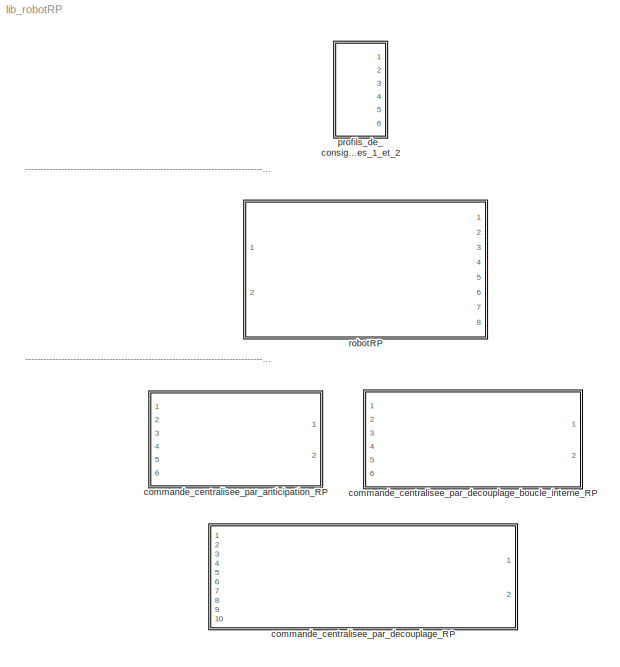
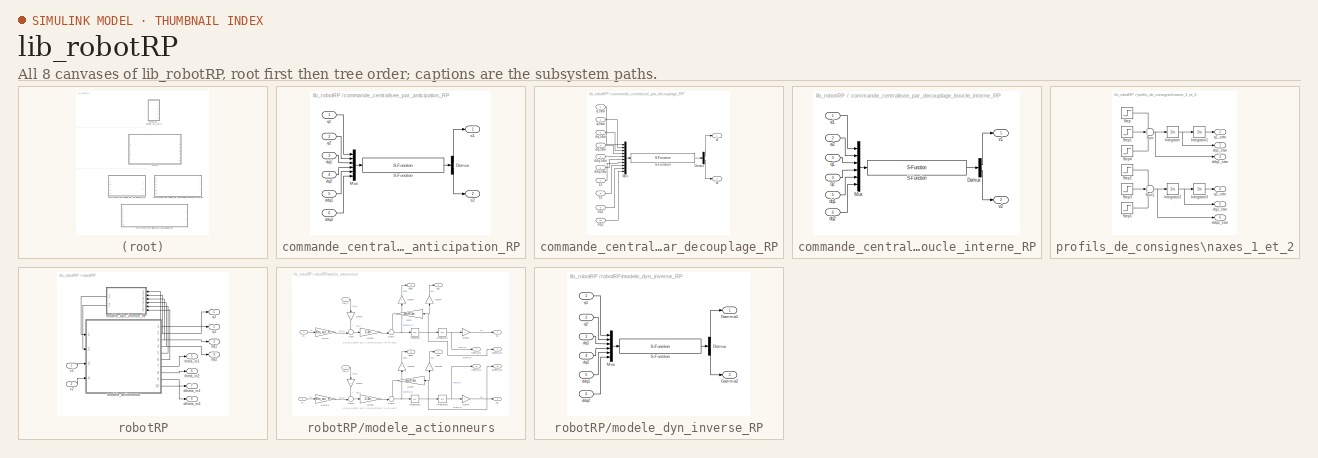
[diagram: thumbnail index - all 8 canvases of the model, root first then tree order]
MODEL lib_robotRP
KIND library
BLOCK [SubSystem] commande_centralisee_par_anticipation_RP
  Ports = [6, 2]
  RequestExecContextInheritance = off
  SID = 13
BLOCK [Demux] commande_centralisee_par_anticipation_RP/Demux
  Outputs = 2
  Ports = [1, 2]
  SID = 20
BLOCK [Mux] commande_centralisee_par_anticipation_RP/Mux
  DisplayOption = bar
  Inputs = 6
  Ports = [6, 1]
  SID = 21
BLOCK [S-Function] commande_centralisee_par_anticipation_RP/S-Function
  EnableBusSupport = off
  FunctionName = sf_loi_avant_RP
  Ports = [1, 1]
  SFcnIsStateOwnerBlock = off
  SFunctionDeploymentMode = off
  SID = 22
BLOCK [Inport] commande_centralisee_par_anticipation_RP/ddq1
  IconDisplay = Port number
  Port = 5
  SID = 18
BLOCK [Inport] commande_centralisee_par_anticipation_RP/ddq2
  IconDisplay = Port number
  Port = 6
  SID = 19
BLOCK [Inport] commande_centralisee_par_anticipation_RP/dq1
  IconDisplay = Port number
  Port = 3
  SID = 16
BLOCK [Inport] commande_centralisee_par_anticipation_RP/dq2
  IconDisplay = Port number
  Port = 4
  SID = 17
BLOCK [Inport] commande_centralisee_par_anticipation_RP/q1
  IconDisplay = Port number
  SID = 14
BLOCK [Inport] commande_centralisee_par_anticipation_RP/q2
  IconDisplay = Port number
  Port = 2
  SID = 15
BLOCK [Outport] commande_centralisee_par_anticipation_RP/s1
  IconDisplay = Port number
  SID = 23
BLOCK [Outport] commande_centralisee_par_anticipation_RP/s2
  IconDisplay = Port number
  Port = 2
  SID = 24
BLOCK [SubSystem] commande_centralisee_par_decouplage_RP
  Ports = [10, 2]
  RequestExecContextInheritance = off
  SID = 132
BLOCK [Demux] commande_centralisee_par_decouplage_RP/Demux
  Outputs = 2
  Ports = [1, 2]
  SID = 143
BLOCK [Mux] commande_centralisee_par_decouplage_RP/Mux
  DisplayOption = bar
  Inputs = 10
  Ports = [10, 1]
  SID = 144
BLOCK [S-Function] commande_centralisee_par_decouplage_RP/S-Function
  EnableBusSupport = off
  FunctionName = sf_retour_linearisant_complet_RP
  Ports = [1, 1]
  SFcnIsStateOwnerBlock = off
  SFunctionDeploymentMode = off
  SID = 145
BLOCK [Inport] commande_centralisee_par_decouplage_RP/ddq1star
  IconDisplay = Port number
  Port = 5
  SID = 137
BLOCK [Inport] commande_centralisee_par_decouplage_RP/ddq2star
  IconDisplay = Port number
  Port = 6
  SID = 138
BLOCK [Inport] commande_centralisee_par_decouplage_RP/dq1
  IconDisplay = Port number
  Port = 9
  SID = 141
BLOCK [Inport] commande_centralisee_par_decouplage_RP/dq1star
  IconDisplay = Port number
  Port = 3
  SID = 135
BLOCK [Inport] commande_centralisee_par_decouplage_RP/dq2
  IconDisplay = Port number
  Port = 10
  SID = 142
BLOCK [Inport] commande_centralisee_par_decouplage_RP/dq2star
  IconDisplay = Port number
  Port = 4
  SID = 136
BLOCK [Inport] commande_centralisee_par_decouplage_RP/q1
  IconDisplay = Port number
  Port = 7
  SID = 139
BLOCK [Inport] commande_centralisee_par_decouplage_RP/q1star
  IconDisplay = Port number
  SID = 133
BLOCK [Inport] commande_centralisee_par_decouplage_RP/q2
  IconDisplay = Port number
  Port = 8
  SID = 140
BLOCK [Inport] commande_centralisee_par_decouplage_RP/q2star
  IconDisplay = Port number
  Port = 2
  SID = 134
BLOCK [Outport] commande_centralisee_par_decouplage_RP/v1
  IconDisplay = Port number
  SID = 146
BLOCK [Outport] commande_centralisee_par_decouplage_RP/v2
  IconDisplay = Port number
  Port = 2
  SID = 147
BLOCK [SubSystem] commande_centralisee_par_decouplage_boucle_interne_RP
  Ports = [6, 2]
  RequestExecContextInheritance = off
  SID = 120
BLOCK [Demux] commande_centralisee_par_decouplage_boucle_interne_RP/Demux
  Outputs = 2
  Ports = [1, 2]
  SID = 127
BLOCK [Mux] commande_centralisee_par_decouplage_boucle_interne_RP/Mux
  DisplayOption = bar
  Inputs = 6
  Ports = [6, 1]
  SID = 128
BLOCK [S-Function] commande_centralisee_par_decouplage_boucle_interne_RP/S-Function
  EnableBusSupport = off
  FunctionName = sf_retour_linearisant_boucle_interne_RP
  Ports = [1, 1]
  SFcnIsStateOwnerBlock = off
  SFunctionDeploymentMode = off
  SID = 129
BLOCK [Inport] commande_centralisee_par_decouplage_boucle_interne_RP/dq1
  IconDisplay = Port number
  Port = 5
  SID = 125
BLOCK [Inport] commande_centralisee_par_decouplage_boucle_interne_RP/dq2
  IconDisplay = Port number
  Port = 6
  SID = 126
BLOCK [Inport] commande_centralisee_par_decouplage_boucle_interne_RP/e1
  IconDisplay = Port number
  SID = 121
BLOCK [Inport] commande_centralisee_par_decouplage_boucle_interne_RP/e2
  IconDisplay = Port number
  Port = 2
  SID = 122
BLOCK [Inport] commande_centralisee_par_decouplage_boucle_interne_RP/q1
  IconDisplay = Port number
  Port = 3
  SID = 123
BLOCK [Inport] commande_centralisee_par_decouplage_boucle_interne_RP/q2
  IconDisplay = Port number
  Port = 4
  SID = 124
BLOCK [Outport] commande_centralisee_par_decouplage_boucle_interne_RP/v1
  IconDisplay = Port number
  SID = 130
BLOCK [Outport] commande_centralisee_par_decouplage_boucle_interne_RP/v2
  IconDisplay = Port number
  Port = 2
  SID = 131
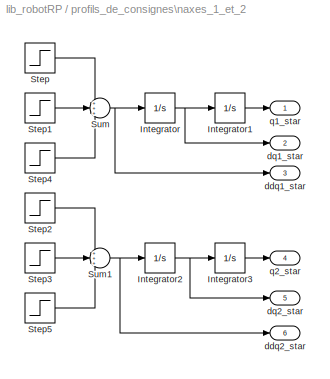
BLOCK [SubSystem] profils_de_consignes\naxes_1_et_2
  Ports = [0, 6]
  RequestExecContextInheritance = off
  SID = 25
BLOCK [Integrator] profils_de_consignes\naxes_1_et_2/Integrator
  Ports = [1, 1]
  SID = 26
BLOCK [Integrator] profils_de_consignes\naxes_1_et_2/Integrator1
  Ports = [1, 1]
  SID = 27
BLOCK [Integrator] profils_de_consignes\naxes_1_et_2/Integrator2
  Ports = [1, 1]
  SID = 28
BLOCK [Integrator] profils_de_consignes\naxes_1_et_2/Integrator3
  InitialCondition = 0.5
  Ports = [1, 1]
  SID = 29
BLOCK [Step] profils_de_consignes\naxes_1_et_2/Step
  After = 0
  Before = pi/10
  SID = 30
  SampleTime = 0
BLOCK [Step] profils_de_consignes\naxes_1_et_2/Step1
  After = -pi/10
  SID = 31
  SampleTime = 0
  Time = 5
BLOCK [Step] profils_de_consignes\naxes_1_et_2/Step2
  After = 0
  Before = 0.1
  SID = 32
  SampleTime = 0
BLOCK [Step] profils_de_consignes\naxes_1_et_2/Step3
  After = -0.1
  SID = 33
  SampleTime = 0
  Time = 5
BLOCK [Step] profils_de_consignes\naxes_1_et_2/Step4
  After = pi/10
  SID = 34
  SampleTime = 0
  Time = 6
BLOCK [Step] profils_de_consignes\naxes_1_et_2/Step5
  After = 0.1
  SID = 35
  SampleTime = 0
  Time = 6
BLOCK [Sum] profils_de_consignes\naxes_1_et_2/Sum
  IconShape = round
  Inputs = +++
  Ports = [3, 1]
  SID = 36
BLOCK [Sum] profils_de_consignes\naxes_1_et_2/Sum1
  IconShape = round
  Inputs = +++
  Ports = [3, 1]
  SID = 37
BLOCK [Outport] profils_de_consignes\naxes_1_et_2/ddq1_star
  IconDisplay = Port number
  Port = 3
  SID = 40
BLOCK [Outport] profils_de_consignes\naxes_1_et_2/ddq2_star
  IconDisplay = Port number
  Port = 6
  SID = 43
BLOCK [Outport] profils_de_consignes\naxes_1_et_2/dq1_star
  IconDisplay = Port number
  Port = 2
  SID = 39
BLOCK [Outport] profils_de_consignes\naxes_1_et_2/dq2_star
  IconDisplay = Port number
  Port = 5
  SID = 42
BLOCK [Outport] profils_de_consignes\naxes_1_et_2/q1_star
  IconDisplay = Port number
  SID = 38
BLOCK [Outport] profils_de_consignes\naxes_1_et_2/q2_star
  IconDisplay = Port number
  Port = 4
  SID = 41
BLOCK [SubSystem] robotRP
  Ports = [2, 8]
  RequestExecContextInheritance = off
  SID = 44
BLOCK [Outport] robotRP/dq1
  IconDisplay = Port number
  Port = 3
  SID = 100
BLOCK [Outport] robotRP/dq2
  IconDisplay = Port number
  Port = 4
  SID = 101
BLOCK [Outport] robotRP/dtheta_m1
  IconDisplay = Port number
  Port = 7
  SID = 104
BLOCK [Outport] robotRP/dtheta_m2
  IconDisplay = Port number
  Port = 8
  SID = 105
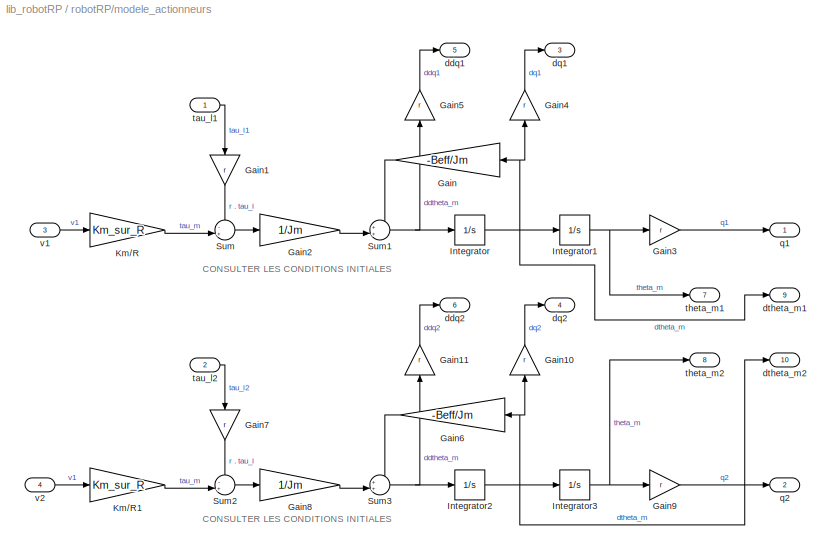
BLOCK [SubSystem] robotRP/modele_actionneurs
  Ports = [4, 10]
  RequestExecContextInheritance = off
  SID = 47
BLOCK [Gain] robotRP/modele_actionneurs/Gain
  Gain = -Beff/Jm
  SID = 52
BLOCK [Gain] robotRP/modele_actionneurs/Gain1
  Gain = r
  SID = 53
BLOCK [Gain] robotRP/modele_actionneurs/Gain10
  Gain = r
  SID = 54
BLOCK [Gain] robotRP/modele_actionneurs/Gain11
  Gain = r
  SID = 55
BLOCK [Gain] robotRP/modele_actionneurs/Gain2
  Gain = 1/Jm
  SID = 56
BLOCK [Gain] robotRP/modele_actionneurs/Gain3
  Gain = r
  SID = 57
BLOCK [Gain] robotRP/modele_actionneurs/Gain4
  Gain = r
  SID = 58
BLOCK [Gain] robotRP/modele_actionneurs/Gain5
  Gain = r
  SID = 59
BLOCK [Gain] robotRP/modele_actionneurs/Gain6
  Gain = -Beff/Jm
  SID = 60
BLOCK [Gain] robotRP/modele_actionneurs/Gain7
  Gain = r
  SID = 61
BLOCK [Gain] robotRP/modele_actionneurs/Gain8
  Gain = 1/Jm
  SID = 62
BLOCK [Gain] robotRP/modele_actionneurs/Gain9
  Gain = r
  SID = 63
BLOCK [Integrator] robotRP/modele_actionneurs/Integrator
  InitialCondition = dtheta_m1_initial
  Ports = [1, 1]
  SID = 64
BLOCK [Integrator] robotRP/modele_actionneurs/Integrator1
  InitialCondition = theta_m1_initial
  Ports = [1, 1]
  SID = 65
BLOCK [Integrator] robotRP/modele_actionneurs/Integrator2
  InitialCondition = dtheta_m2_initial
  Ports = [1, 1]
  SID = 66
BLOCK [Integrator] robotRP/modele_actionneurs/Integrator3
  InitialCondition = theta_m2_initial
  Ports = [1, 1]
  SID = 67
BLOCK [Gain] robotRP/modele_actionneurs/Km//R
  Gain = Km_sur_R
  SID = 68
BLOCK [Gain] robotRP/modele_actionneurs/Km//R1
  Gain = Km_sur_R
  SID = 69
BLOCK [Sum] robotRP/modele_actionneurs/Sum
  IconShape = round
  Inputs = -+|
  Ports = [2, 1]
  SID = 70
BLOCK [Sum] robotRP/modele_actionneurs/Sum1
  IconShape = round
  Inputs = ++|
  Ports = [2, 1]
  SID = 71
BLOCK [Sum] robotRP/modele_actionneurs/Sum2
  IconShape = round
  Inputs = -+|
  Ports = [2, 1]
  SID = 72
BLOCK [Sum] robotRP/modele_actionneurs/Sum3
  IconShape = round
  Inputs = ++|
  Ports = [2, 1]
  SID = 73
BLOCK [Outport] robotRP/modele_actionneurs/ddq1
  IconDisplay = Port number
  Port = 5
  SID = 78
BLOCK [Outport] robotRP/modele_actionneurs/ddq2
  IconDisplay = Port number
  Port = 6
  SID = 79
BLOCK [Outport] robotRP/modele_actionneurs/dq1
  IconDisplay = Port number
  Port = 3
  SID = 76
BLOCK [Outport] robotRP/modele_actionneurs/dq2
  IconDisplay = Port number
  Port = 4
  SID = 77
BLOCK [Outport] robotRP/modele_actionneurs/dtheta_m1
  IconDisplay = Port number
  Port = 9
  SID = 82
BLOCK [Outport] robotRP/modele_actionneurs/dtheta_m2
  IconDisplay = Port number
  Port = 10
  SID = 83
BLOCK [Outport] robotRP/modele_actionneurs/q1
  IconDisplay = Port number
  SID = 74
BLOCK [Outport] robotRP/modele_actionneurs/q2
  IconDisplay = Port number
  Port = 2
  SID = 75
BLOCK [Inport] robotRP/modele_actionneurs/tau_l1
  IconDisplay = Port number
  SID = 48
BLOCK [Inport] robotRP/modele_actionneurs/tau_l2
  IconDisplay = Port number
  Port = 2
  SID = 49
BLOCK [Outport] robotRP/modele_actionneurs/theta_m1
  IconDisplay = Port number
  Port = 7
  SID = 80
BLOCK [Outport] robotRP/modele_actionneurs/theta_m2
  IconDisplay = Port number
  Port = 8
  SID = 81
BLOCK [Inport] robotRP/modele_actionneurs/v1
  IconDisplay = Port number
  Port = 3
  SID = 50
BLOCK [Inport] robotRP/modele_actionneurs/v2
  IconDisplay = Port number
  Port = 4
  SID = 51
BLOCK [SubSystem] robotRP/modele_dyn_inverse_RP
  Ports = [6, 2]
  RequestExecContextInheritance = off
  SID = 86
BLOCK [Demux] robotRP/modele_dyn_inverse_RP/Demux
  Outputs = 2
  Ports = [1, 2]
  SID = 93
BLOCK [Outport] robotRP/modele_dyn_inverse_RP/Gamma1
  IconDisplay = Port number
  SID = 96
BLOCK [Outport] robotRP/modele_dyn_inverse_RP/Gamma2
  IconDisplay = Port number
  Port = 2
  SID = 97
BLOCK [Mux] robotRP/modele_dyn_inverse_RP/Mux
  DisplayOption = bar
  Inputs = 6
  Ports = [6, 1]
  SID = 94
BLOCK [S-Function] robotRP/modele_dyn_inverse_RP/S-Function
  EnableBusSupport = off
  FunctionName = sf_modele_dyn_inverse_RP
  Parameters = m gX gY F1 F2 H1 H2
  Ports = [1, 1]
  SFcnIsStateOwnerBlock = off
  SFunctionDeploymentMode = off
  SID = 95
BLOCK [Inport] robotRP/modele_dyn_inverse_RP/ddq1
  IconDisplay = Port number
  Port = 5
  SID = 91
BLOCK [Inport] robotRP/modele_dyn_inverse_RP/ddq2
  IconDisplay = Port number
  Port = 6
  SID = 92
BLOCK [Inport] robotRP/modele_dyn_inverse_RP/dq1
  IconDisplay = Port number
  Port = 3
  SID = 89
BLOCK [Inport] robotRP/modele_dyn_inverse_RP/dq2
  IconDisplay = Port number
  Port = 4
  SID = 90
BLOCK [Inport] robotRP/modele_dyn_inverse_RP/q1
  IconDisplay = Port number
  SID = 87
BLOCK [Inport] robotRP/modele_dyn_inverse_RP/q2
  IconDisplay = Port number
  Port = 2
  SID = 88
BLOCK [Outport] robotRP/q1
  IconDisplay = Port number
  SID = 98
BLOCK [Outport] robotRP/q2
  IconDisplay = Port number
  Port = 2
  SID = 99
BLOCK [Outport] robotRP/theta_m1
  IconDisplay = Port number
  Port = 5
  SID = 102
BLOCK [Outport] robotRP/theta_m2
  IconDisplay = Port number
  Port = 6
  SID = 103
BLOCK [Inport] robotRP/v1
  IconDisplay = Port number
  SID = 45
BLOCK [Inport] robotRP/v2
  IconDisplay = Port number
  Port = 2
  SID = 46
ANNOTATION (root): ----------------------------------------------------------------------------------------------------------------------------------
ANNOTATION robotRP/modele_actionneurs: CONSULTER LES CONDITIONS INITIALES
LINE commande_centralisee_par_anticipation_RP/Demux:1 -> commande_centralisee_par_anticipation_RP/s1:1
LINE commande_centralisee_par_anticipation_RP/Demux:2 -> commande_centralisee_par_anticipation_RP/s2:1
LINE commande_centralisee_par_anticipation_RP/Mux:1 -> commande_centralisee_par_anticipation_RP/S-Function:1
LINE commande_centralisee_par_anticipation_RP/S-Function:1 -> commande_centralisee_par_anticipation_RP/Demux:1
LINE commande_centralisee_par_anticipation_RP/ddq1:1 -> commande_centralisee_par_anticipation_RP/Mux:5
LINE commande_centralisee_par_anticipation_RP/ddq2:1 -> commande_centralisee_par_anticipation_RP/Mux:6
LINE commande_centralisee_par_anticipation_RP/dq1:1 -> commande_centralisee_par_anticipation_RP/Mux:3
LINE commande_centralisee_par_anticipation_RP/dq2:1 -> commande_centralisee_par_anticipation_RP/Mux:4
LINE commande_centralisee_par_anticipation_RP/q1:1 -> commande_centralisee_par_anticipation_RP/Mux:1
LINE commande_centralisee_par_anticipation_RP/q2:1 -> commande_centralisee_par_anticipation_RP/Mux:2
LINE commande_centralisee_par_decouplage_RP/Demux:1 -> commande_centralisee_par_decouplage_RP/v1:1
LINE commande_centralisee_par_decouplage_RP/Demux:2 -> commande_centralisee_par_decouplage_RP/v2:1
LINE commande_centralisee_par_decouplage_RP/Mux:1 -> commande_centralisee_par_decouplage_RP/S-Function:1
LINE commande_centralisee_par_decouplage_RP/S-Function:1 -> commande_centralisee_par_decouplage_RP/Demux:1
LINE commande_centralisee_par_decouplage_RP/ddq1star:1 -> commande_centralisee_par_decouplage_RP/Mux:5
LINE commande_centralisee_par_decouplage_RP/ddq2star:1 -> commande_centralisee_par_decouplage_RP/Mux:6
LINE commande_centralisee_par_decouplage_RP/dq1:1 -> commande_centralisee_par_decouplage_RP/Mux:9
LINE commande_centralisee_par_decouplage_RP/dq1star:1 -> commande_centralisee_par_decouplage_RP/Mux:3
LINE commande_centralisee_par_decouplage_RP/dq2:1 -> commande_centralisee_par_decouplage_RP/Mux:10
LINE commande_centralisee_par_decouplage_RP/dq2star:1 -> commande_centralisee_par_decouplage_RP/Mux:4
LINE commande_centralisee_par_decouplage_RP/q1:1 -> commande_centralisee_par_decouplage_RP/Mux:7
LINE commande_centralisee_par_decouplage_RP/q1star:1 -> commande_centralisee_par_decouplage_RP/Mux:1
LINE commande_centralisee_par_decouplage_RP/q2:1 -> commande_centralisee_par_decouplage_RP/Mux:8
LINE commande_centralisee_par_decouplage_RP/q2star:1 -> commande_centralisee_par_decouplage_RP/Mux:2
LINE commande_centralisee_par_decouplage_boucle_interne_RP/Demux:1 -> commande_centralisee_par_decouplage_boucle_interne_RP/v1:1
LINE commande_centralisee_par_decouplage_boucle_interne_RP/Demux:2 -> commande_centralisee_par_decouplage_boucle_interne_RP/v2:1
LINE commande_centralisee_par_decouplage_boucle_interne_RP/Mux:1 -> commande_centralisee_par_decouplage_boucle_interne_RP/S-Function:1
LINE commande_centralisee_par_decouplage_boucle_interne_RP/S-Function:1 -> commande_centralisee_par_decouplage_boucle_interne_RP/Demux:1
LINE commande_centralisee_par_decouplage_boucle_interne_RP/dq1:1 -> commande_centralisee_par_decouplage_boucle_interne_RP/Mux:5
LINE commande_centralisee_par_decouplage_boucle_interne_RP/dq2:1 -> commande_centralisee_par_decouplage_boucle_interne_RP/Mux:6
LINE commande_centralisee_par_decouplage_boucle_interne_RP/e1:1 -> commande_centralisee_par_decouplage_boucle_interne_RP/Mux:1
LINE commande_centralisee_par_decouplage_boucle_interne_RP/e2:1 -> commande_centralisee_par_decouplage_boucle_interne_RP/Mux:2
LINE commande_centralisee_par_decouplage_boucle_interne_RP/q1:1 -> commande_centralisee_par_decouplage_boucle_interne_RP/Mux:3
LINE commande_centralisee_par_decouplage_boucle_interne_RP/q2:1 -> commande_centralisee_par_decouplage_boucle_interne_RP/Mux:4
LINE profils_de_consignes\naxes_1_et_2/Integrator1:1 -> profils_de_consignes\naxes_1_et_2/q1_star:1
NET profils_de_consignes\naxes_1_et_2/Integrator2:1 -> profils_de_consignes\naxes_1_et_2/Integrator3:1, profils_de_consignes\naxes_1_et_2/dq2_star:1
LINE profils_de_consignes\naxes_1_et_2/Integrator3:1 -> profils_de_consignes\naxes_1_et_2/q2_star:1
NET profils_de_consignes\naxes_1_et_2/Integrator:1 -> profils_de_consignes\naxes_1_et_2/Integrator1:1, profils_de_consignes\naxes_1_et_2/dq1_star:1
LINE profils_de_consignes\naxes_1_et_2/Step1:1 -> profils_de_consignes\naxes_1_et_2/Sum:2
LINE profils_de_consignes\naxes_1_et_2/Step2:1 -> profils_de_consignes\naxes_1_et_2/Sum1:1
LINE profils_de_consignes\naxes_1_et_2/Step3:1 -> profils_de_consignes\naxes_1_et_2/Sum1:2
LINE profils_de_consignes\naxes_1_et_2/Step4:1 -> profils_de_consignes\naxes_1_et_2/Sum:3
LINE profils_de_consignes\naxes_1_et_2/Step5:1 -> profils_de_consignes\naxes_1_et_2/Sum1:3
LINE profils_de_consignes\naxes_1_et_2/Step:1 -> profils_de_consignes\naxes_1_et_2/Sum:1
NET profils_de_consignes\naxes_1_et_2/Sum1:1 -> profils_de_consignes\naxes_1_et_2/Integrator2:1, profils_de_consignes\naxes_1_et_2/ddq2_star:1
NET profils_de_consignes\naxes_1_et_2/Sum:1 -> profils_de_consignes\naxes_1_et_2/Integrator:1, profils_de_consignes\naxes_1_et_2/ddq1_star:1
LINE robotRP/modele_actionneurs/Gain10:1 -> robotRP/modele_actionneurs/dq2:1
LINE robotRP/modele_actionneurs/Gain11:1 -> robotRP/modele_actionneurs/ddq2:1
LINE robotRP/modele_actionneurs/Gain1:1 -> robotRP/modele_actionneurs/Sum:1
LINE robotRP/modele_actionneurs/Gain2:1 -> robotRP/modele_actionneurs/Sum1:2
LINE robotRP/modele_actionneurs/Gain3:1 -> robotRP/modele_actionneurs/q1:1
LINE robotRP/modele_actionneurs/Gain4:1 -> robotRP/modele_actionneurs/dq1:1
LINE robotRP/modele_actionneurs/Gain5:1 -> robotRP/modele_actionneurs/ddq1:1
LINE robotRP/modele_actionneurs/Gain6:1 -> robotRP/modele_actionneurs/Sum3:1
LINE robotRP/modele_actionneurs/Gain7:1 -> robotRP/modele_actionneurs/Sum2:1
LINE robotRP/modele_actionneurs/Gain8:1 -> robotRP/modele_actionneurs/Sum3:2
LINE robotRP/modele_actionneurs/Gain9:1 -> robotRP/modele_actionneurs/q2:1
LINE robotRP/modele_actionneurs/Gain:1 -> robotRP/modele_actionneurs/Sum1:1
NET robotRP/modele_actionneurs/Integrator1:1 -> robotRP/modele_actionneurs/Gain3:1, robotRP/modele_actionneurs/theta_m1:1
NET robotRP/modele_actionneurs/Integrator2:1 -> robotRP/modele_actionneurs/Gain10:1, robotRP/modele_actionneurs/Gain6:1, robotRP/modele_actionneurs/Integrator3:1, robotRP/modele_actionneurs/dtheta_m2:1
NET robotRP/modele_actionneurs/Integrator3:1 -> robotRP/modele_actionneurs/Gain9:1, robotRP/modele_actionneurs/theta_m2:1
NET robotRP/modele_actionneurs/Integrator:1 -> robotRP/modele_actionneurs/Gain4:1, robotRP/modele_actionneurs/Gain:1, robotRP/modele_actionneurs/Integrator1:1, robotRP/modele_actionneurs/dtheta_m1:1
LINE robotRP/modele_actionneurs/Km//R1:1 -> robotRP/modele_actionneurs/Sum2:2
LINE robotRP/modele_actionneurs/Km//R:1 -> robotRP/modele_actionneurs/Sum:2
NET robotRP/modele_actionneurs/Sum1:1 -> robotRP/modele_actionneurs/Gain5:1, robotRP/modele_actionneurs/Integrator:1
LINE robotRP/modele_actionneurs/Sum2:1 -> robotRP/modele_actionneurs/Gain8:1
NET robotRP/modele_actionneurs/Sum3:1 -> robotRP/modele_actionneurs/Gain11:1, robotRP/modele_actionneurs/Integrator2:1
LINE robotRP/modele_actionneurs/Sum:1 -> robotRP/modele_actionneurs/Gain2:1
LINE robotRP/modele_actionneurs/tau_l1:1 -> robotRP/modele_actionneurs/Gain1:1
LINE robotRP/modele_actionneurs/tau_l2:1 -> robotRP/modele_actionneurs/Gain7:1
LINE robotRP/modele_actionneurs/v1:1 -> robotRP/modele_actionneurs/Km//R:1
LINE robotRP/modele_actionneurs/v2:1 -> robotRP/modele_actionneurs/Km//R1:1
NET robotRP/modele_actionneurs:1 -> robotRP/modele_dyn_inverse_RP:1, robotRP/q1:1
LINE robotRP/modele_actionneurs:10 -> robotRP/dtheta_m2:1
NET robotRP/modele_actionneurs:2 -> robotRP/modele_dyn_inverse_RP:2, robotRP/q2:1
NET robotRP/modele_actionneurs:3 -> robotRP/dq1:1, robotRP/modele_dyn_inverse_RP:3
NET robotRP/modele_actionneurs:4 -> robotRP/dq2:1, robotRP/modele_dyn_inverse_RP:4
LINE robotRP/modele_actionneurs:5 -> robotRP/modele_dyn_inverse_RP:5
LINE robotRP/modele_actionneurs:6 -> robotRP/modele_dyn_inverse_RP:6
LINE robotRP/modele_actionneurs:7 -> robotRP/theta_m1:1
LINE robotRP/modele_actionneurs:8 -> robotRP/theta_m2:1
LINE robotRP/modele_actionneurs:9 -> robotRP/dtheta_m1:1
LINE robotRP/modele_dyn_inverse_RP/Demux:1 -> robotRP/modele_dyn_inverse_RP/Gamma1:1
LINE robotRP/modele_dyn_inverse_RP/Demux:2 -> robotRP/modele_dyn_inverse_RP/Gamma2:1
LINE robotRP/modele_dyn_inverse_RP/Mux:1 -> robotRP/modele_dyn_inverse_RP/S-Function:1
LINE robotRP/modele_dyn_inverse_RP/S-Function:1 -> robotRP/modele_dyn_inverse_RP/Demux:1
LINE robotRP/modele_dyn_inverse_RP/ddq1:1 -> robotRP/modele_dyn_inverse_RP/Mux:5
LINE robotRP/modele_dyn_inverse_RP/ddq2:1 -> robotRP/modele_dyn_inverse_RP/Mux:6
LINE robotRP/modele_dyn_inverse_RP/dq1:1 -> robotRP/modele_dyn_inverse_RP/Mux:3
LINE robotRP/modele_dyn_inverse_RP/dq2:1 -> robotRP/modele_dyn_inverse_RP/Mux:4
LINE robotRP/modele_dyn_inverse_RP/q1:1 -> robotRP/modele_dyn_inverse_RP/Mux:1
LINE robotRP/modele_dyn_inverse_RP/q2:1 -> robotRP/modele_dyn_inverse_RP/Mux:2
LINE robotRP/modele_dyn_inverse_RP:1 -> robotRP/modele_actionneurs:1
LINE robotRP/modele_dyn_inverse_RP:2 -> robotRP/modele_actionneurs:2
LINE robotRP/v1:1 -> robotRP/modele_actionneurs:3
LINE robotRP/v2:1 -> robotRP/modele_actionneurs:4
note: NET lines group one-source signal fan-out (src -> all destinations, sorted); 1:1 wires keep LINE
